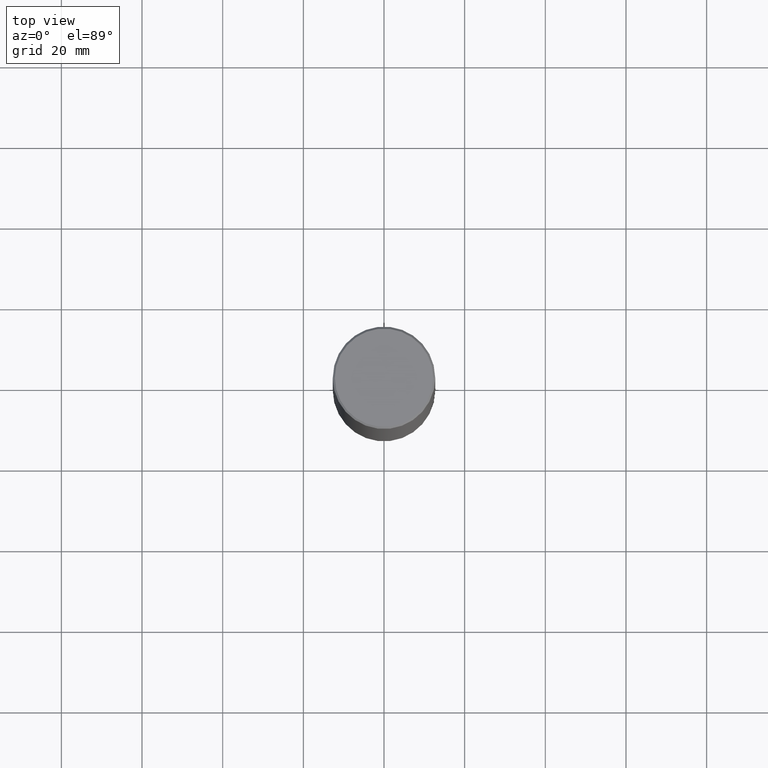
[diagram: clean part render]
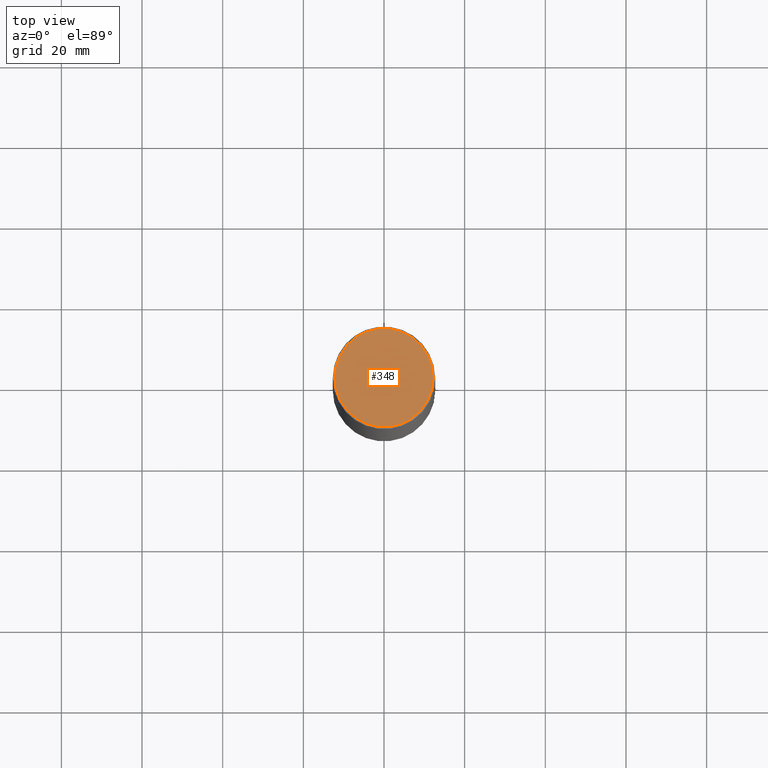
[diagram: same view with one face highlighted and labeled with its STEP entity id]
A machine part, top view. The second image highlights one B-rep face of the part: STEP entity #348.
In plain terms, the highlighted planar face has unit normal (0, -0, -1).
Its self-contained STEP definition (entity closure, byte-faithful):
#8 = EDGE_CURVE ( 'NONE', #112, #251, #306, .T. ) ;
#40 = DIRECTION ( 'NONE',  ( -1.000000000000000000, 6.982962677686265922E-15, -4.876176775795935793E-29 ) ) ;
#46 = EDGE_LOOP ( 'NONE', ( #337, #305 ) ) ;
#48 = DIRECTION ( 'NONE',  ( 1.000000000000000000, -6.982962677686266711E-15, 4.874852205035277589E-29 ) ) ;
#76 = CARTESIAN_POINT ( 'NONE',  ( -2.922783960138615261E-45, 4.172960877065252270E-31, 1.195183497228115035E-16 ) ) ;
#102 = FACE_OUTER_BOUND ( 'NONE', #46, .T. ) ;
#112 = VERTEX_POINT ( 'NONE', #291 ) ;
#125 = AXIS2_PLACEMENT_3D ( 'NONE', #359, #200, #40 ) ;
#143 = DIRECTION ( 'NONE',  ( -2.445468806185136597E-29, 3.491481338843145583E-15, 1.000000000000000000 ) ) ;
#177 = AXIS2_PLACEMENT_3D ( 'NONE', #76, #143, #391 ) ;
#183 = AXIS2_PLACEMENT_3D ( 'NONE', #282, #399, #48 ) ;
#200 = DIRECTION ( 'NONE',  ( 2.438088387897960049E-29, -3.491481338843145188E-15, -1.000000000000000000 ) ) ;
#251 = VERTEX_POINT ( 'NONE', #397 ) ;
#278 = PLANE ( 'NONE',  #125 ) ;
#282 = CARTESIAN_POINT ( 'NONE',  ( -2.922783960138615261E-45, 4.172960877065252270E-31, 1.195183497228115035E-16 ) ) ;
#291 = CARTESIAN_POINT ( 'NONE',  ( 0.4799999999999999267, -3.396558832296482099E-15, 1.195183497228351200E-16 ) ) ;
#299 = EDGE_CURVE ( 'NONE', #251, #112, #325, .T. ) ;
#305 = ORIENTED_EDGE ( 'NONE', *, *, #8, .T. ) ;
#306 = CIRCLE ( 'NONE', #177, 0.4799999999999999267 ) ;
#325 = CIRCLE ( 'NONE', #183, 0.4799999999999999267 ) ;
#337 = ORIENTED_EDGE ( 'NONE', *, *, #299, .T. ) ;
#348 = ADVANCED_FACE ( 'NONE', ( #102 ), #278, .F. ) ;
#359 = CARTESIAN_POINT ( 'NONE',  ( 3.351822085289407153E-15, 0.4799999999999999267, -1.616151867783303914E-15 ) ) ;
#391 = DIRECTION ( 'NONE',  ( 1.000000000000000000, -6.982962677686266711E-15, 4.874852205035277589E-29 ) ) ;
#397 = CARTESIAN_POINT ( 'NONE',  ( -0.4799999999999999267, 3.386736898677839197E-15, 1.195183497227879609E-16 ) ) ;
#399 = DIRECTION ( 'NONE',  ( -2.445468806185136597E-29, 3.491481338843145583E-15, 1.000000000000000000 ) ) ;